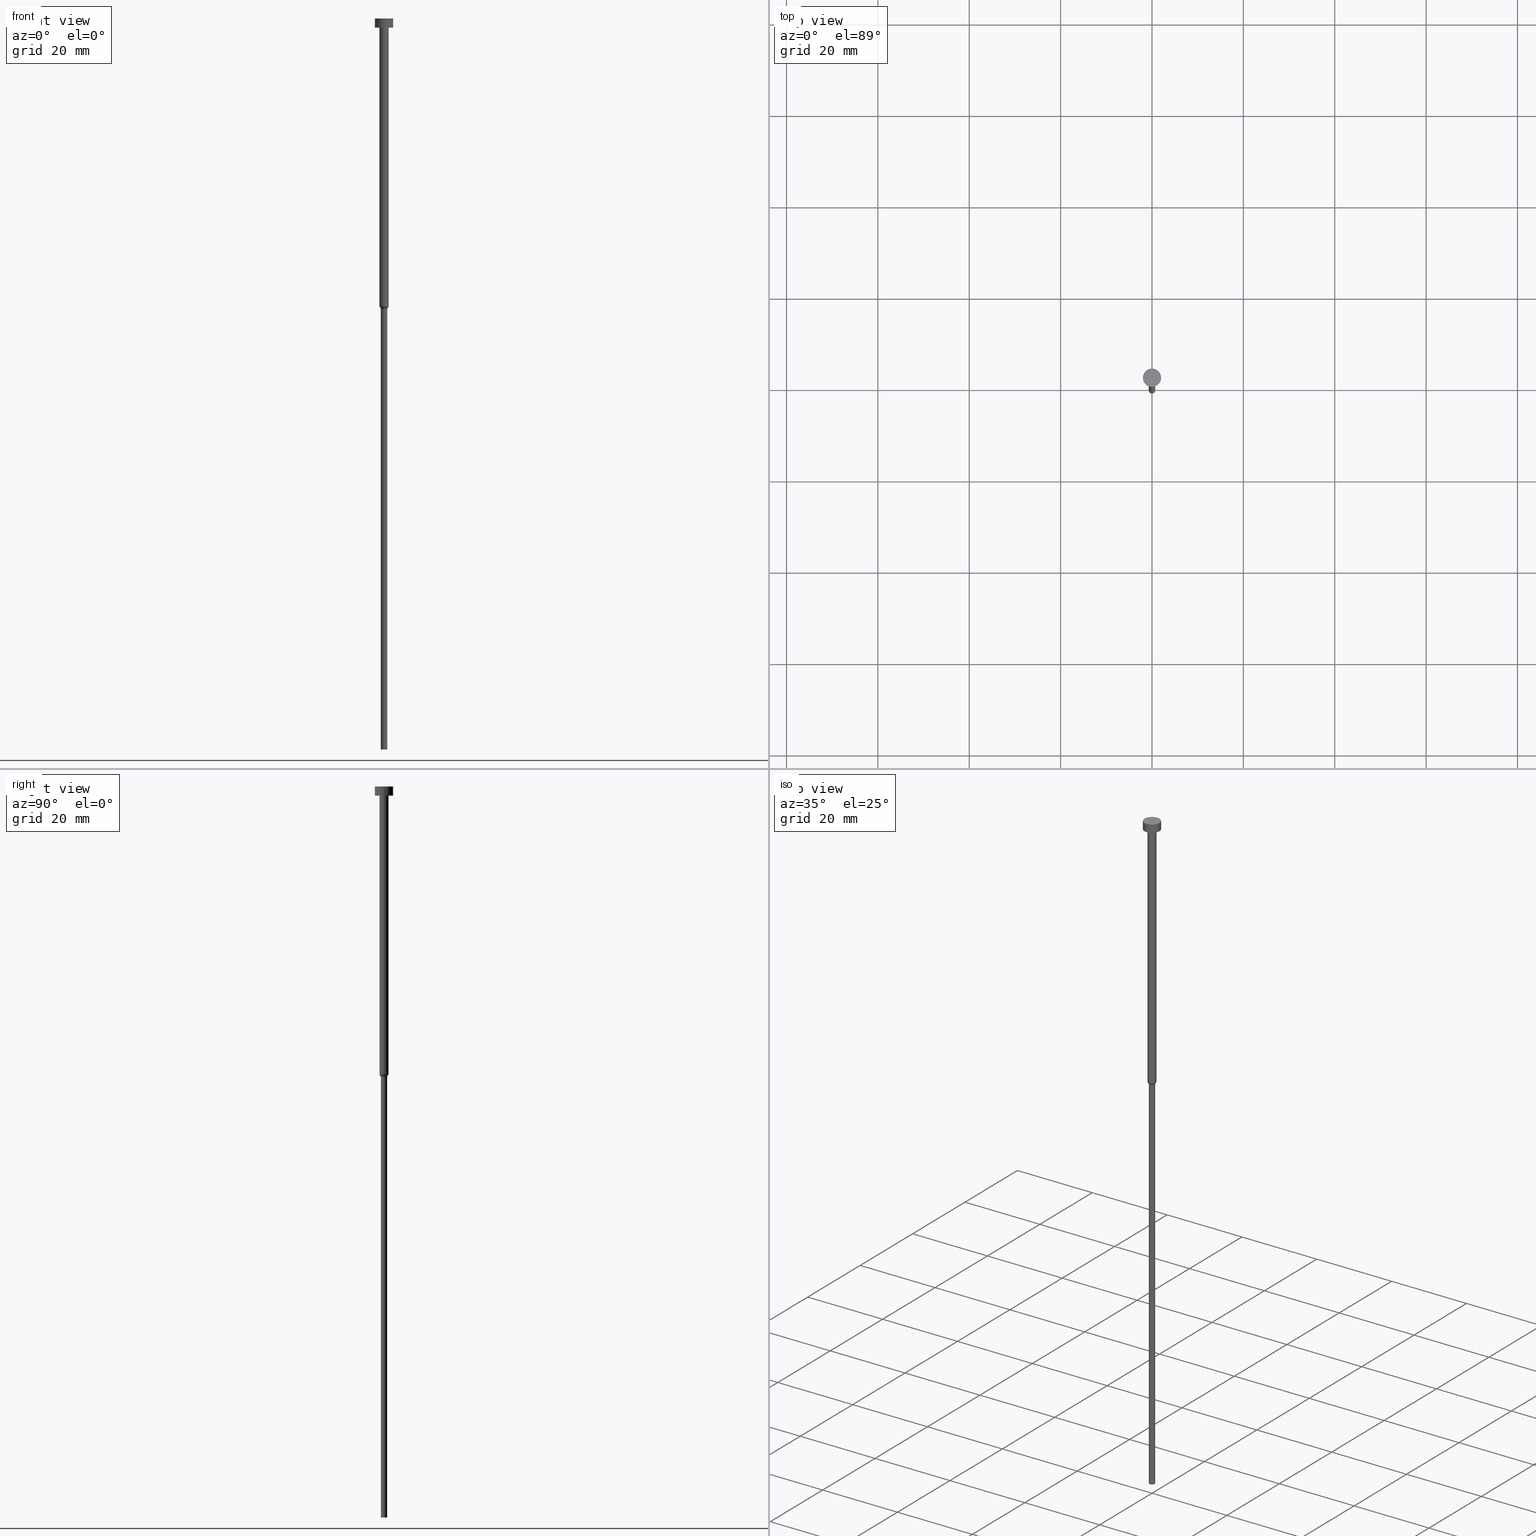
[diagram: canonical four-view strip — front | top / right | iso, engineering-drawing reading convention]
A machine part, canonical four-view strip (front | top / right | iso — engineering-drawing reading convention). The complete STEP part file that produces these views, byte-faithful:
ISO-10303-21;
HEADER;
FILE_DESCRIPTION (( 'STEP AP203' ),
    '1' );
FILE_NAME ('6fc9.STEP',
    '2023-02-13T11:50:39',
    ( '' ),
    ( '' ),
    'SwSTEP 2.0',
    'SolidWorks 2019',
    '' );
FILE_SCHEMA (( 'CONFIG_CONTROL_DESIGN' ));
ENDSEC;

DATA;
#1 = CARTESIAN_POINT ( 'NONE',  ( -2.000000000000000000, 2.449293598294706414E-16, -2.000000000000000444 ) ) ;
#2 = DIRECTION ( 'NONE',  ( 1.000000000000000000, 0.000000000000000000, 0.000000000000000000 ) ) ;
#3 = DIRECTION ( 'NONE',  ( 1.000000000000000000, 0.000000000000000000, 0.000000000000000000 ) ) ;
#4 = APPROVAL ( #76, 'NEUR�EN�' ) ;
#5 = DIRECTION ( 'NONE',  ( 1.000000000000000000, 0.000000000000000000, 0.000000000000000000 ) ) ;
#6 = LOCAL_TIME ( 12, 50, 39.00000000000000000, #292 ) ;
#7 = CARTESIAN_POINT ( 'NONE',  ( 0.000000000000000000, 0.000000000000000000, 0.000000000000000000 ) ) ;
#8 = CYLINDRICAL_SURFACE ( 'NONE', #62, 2.000000000000000000 ) ;
#9 = CARTESIAN_POINT ( 'NONE',  ( 1.000000000000003109, 0.000000000000000000, -63.00000000000000000 ) ) ;
#10 = AXIS2_PLACEMENT_3D ( 'NONE', #274, #50, #167 ) ;
#11 = DIRECTION ( 'NONE',  ( 0.000000000000000000, 0.000000000000000000, 1.000000000000000000 ) ) ;
#12 = CC_DESIGN_PERSON_AND_ORGANIZATION_ASSIGNMENT ( #126, #212, ( #284 ) ) ;
#13 = ORIENTED_EDGE ( 'NONE', *, *, #324, .F. ) ;
#14 = VECTOR ( 'NONE', #342, 1000.000000000000000 ) ;
#15 = PERSON_AND_ORGANIZATION_ROLE ( 'creator' ) ;
#16 = ORIENTED_EDGE ( 'NONE', *, *, #105, .T. ) ;
#17 = EDGE_CURVE ( 'NONE', #242, #177, #351, .T. ) ;
#18 = DATE_AND_TIME ( #236, #171 ) ;
#19 = VERTEX_POINT ( 'NONE', #104 ) ;
#20 = ORIENTED_EDGE ( 'NONE', *, *, #234, .T. ) ;
#21 = ORIENTED_EDGE ( 'NONE', *, *, #38, .T. ) ;
#22 = EDGE_CURVE ( 'NONE', #242, #346, #257, .T. ) ;
#23 = AXIS2_PLACEMENT_3D ( 'NONE', #7, #338, #89 ) ;
#24 = LINE ( 'NONE', #328, #216 ) ;
#25 = CARTESIAN_POINT ( 'NONE',  ( 0.000000000000000000, 0.000000000000000000, -160.0000000000000000 ) ) ;
#26 = FACE_OUTER_BOUND ( 'NONE', #180, .T. ) ;
#27 = VERTEX_POINT ( 'NONE', #208 ) ;
#28 = CIRCLE ( 'NONE', #272, 0.6999999999999998446 ) ;
#29 = ADVANCED_FACE ( 'NONE', ( #69, #290 ), #40, .T. ) ;
#30 = DIRECTION ( 'NONE',  ( 1.000000000000000000, 0.000000000000000000, 0.000000000000000000 ) ) ;
#31 =( LENGTH_UNIT ( ) NAMED_UNIT ( * ) SI_UNIT ( .MILLI., .METRE. ) );
#32 = CC_DESIGN_PERSON_AND_ORGANIZATION_ASSIGNMENT ( #241, #207, ( #238 ) ) ;
#33 = VECTOR ( 'NONE', #61, 1000.000000000000000 ) ;
#34 = CYLINDRICAL_SURFACE ( 'NONE', #51, 1.000000000000003331 ) ;
#35 = CARTESIAN_POINT ( 'NONE',  ( 0.000000000000000000, 0.000000000000000000, -160.0000000000000000 ) ) ;
#36 = AXIS2_PLACEMENT_3D ( 'NONE', #329, #220, #30 ) ;
#37 = APPROVAL_STATUS ( 'not_yet_approved' ) ;
#38 = EDGE_CURVE ( 'NONE', #72, #27, #165, .T. ) ;
#39 = PERSON_AND_ORGANIZATION ( #146, #317 ) ;
#40 = PLANE ( 'NONE',  #269 ) ;
#41 = PERSON_AND_ORGANIZATION_ROLE ( 'design_owner' ) ;
#42 = EDGE_LOOP ( 'NONE', ( #129, #127, #184, #297 ) ) ;
#43 = EDGE_CURVE ( 'NONE', #346, #54, #191, .T. ) ;
#44 = APPROVAL_DATE_TIME ( #350, #123 ) ;
#45 = ORIENTED_EDGE ( 'NONE', *, *, #186, .T. ) ;
#46 = APPROVAL_PERSON_ORGANIZATION ( #94, #123, #318 ) ;
#47 = ORIENTED_EDGE ( 'NONE', *, *, #247, .F. ) ;
#48 = DIRECTION ( 'NONE',  ( -0.000000000000000000, -0.000000000000000000, 1.000000000000000000 ) ) ;
#49 = AXIS2_PLACEMENT_3D ( 'NONE', #187, #330, #108 ) ;
#50 = DIRECTION ( 'NONE',  ( -0.000000000000000000, -0.000000000000000000, 1.000000000000000000 ) ) ;
#51 = AXIS2_PLACEMENT_3D ( 'NONE', #314, #64, #91 ) ;
#52 = DIRECTION ( 'NONE',  ( 1.000000000000000000, 0.000000000000000000, 0.000000000000000000 ) ) ;
#53 = DIRECTION ( 'NONE',  ( 0.000000000000000000, -0.000000000000000000, 1.000000000000000000 ) ) ;
#54 = VERTEX_POINT ( 'NONE', #248 ) ;
#55 = DIRECTION ( 'NONE',  ( -0.000000000000000000, -0.000000000000000000, 1.000000000000000000 ) ) ;
#56 = APPROVAL_PERSON_ORGANIZATION ( #102, #65, #68 ) ;
#57 = DIRECTION ( 'NONE',  ( -1.000000000000000000, 0.000000000000000000, -0.000000000000000000 ) ) ;
#58 = DIRECTION ( 'NONE',  ( -0.000000000000000000, -0.000000000000000000, 1.000000000000000000 ) ) ;
#59 = PRODUCT_RELATED_PRODUCT_CATEGORY ( 'detail', '', ( #106 ) ) ;
#60 = CIRCLE ( 'NONE', #231, 2.000000000000000000 ) ;
#61 = DIRECTION ( 'NONE',  ( -0.000000000000000000, -0.000000000000000000, 1.000000000000000000 ) ) ;
#62 = AXIS2_PLACEMENT_3D ( 'NONE', #229, #340, #308 ) ;
#63 = CARTESIAN_POINT ( 'NONE',  ( -0.6999999999999998446, 8.572527594031470725E-17, -160.0000000000000000 ) ) ;
#64 = DIRECTION ( 'NONE',  ( -0.000000000000000000, -0.000000000000000000, 1.000000000000000000 ) ) ;
#65 = APPROVAL ( #176, 'NEUR�EN�' ) ;
#66 = LINE ( 'NONE', #258, #142 ) ;
#67 = CIRCLE ( 'NONE', #49, 2.000000000000000000 ) ;
#68 = APPROVAL_ROLE ( '' ) ;
#69 = FACE_BOUND ( 'NONE', #267, .T. ) ;
#70 = AXIS2_PLACEMENT_3D ( 'NONE', #347, #11, #151 ) ;
#71 = CALENDAR_DATE ( 2023, 13, 2 ) ;
#72 = VERTEX_POINT ( 'NONE', #223 ) ;
#73 = ORIENTED_EDGE ( 'NONE', *, *, #200, .F. ) ;
#74 = APPROVAL_DATE_TIME ( #18, #4 ) ;
#75 = ORIENTED_EDGE ( 'NONE', *, *, #279, .T. ) ;
#76 = APPROVAL_STATUS ( 'not_yet_approved' ) ;
#77 = ORIENTED_EDGE ( 'NONE', *, *, #271, .F. ) ;
#78 = EDGE_CURVE ( 'NONE', #268, #100, #60, .T. ) ;
#79 = DIRECTION ( 'NONE',  ( -0.000000000000000000, -0.000000000000000000, 1.000000000000000000 ) ) ;
#80 = PLANE ( 'NONE',  #305 ) ;
#81 = AXIS2_PLACEMENT_3D ( 'NONE', #160, #107, #221 ) ;
#82 = DIRECTION ( 'NONE',  ( -0.000000000000000000, -0.000000000000000000, 1.000000000000000000 ) ) ;
#83 = EDGE_CURVE ( 'NONE', #54, #177, #101, .T. ) ;
#84 = DIRECTION ( 'NONE',  ( -1.000000000000000000, 0.000000000000000000, -0.000000000000000000 ) ) ;
#85 = CARTESIAN_POINT ( 'NONE',  ( -1.000000000000003331, 1.224646799147357151E-16, 0.000000000000000000 ) ) ;
#86 = DIRECTION ( 'NONE',  ( -0.000000000000000000, -0.000000000000000000, 1.000000000000000000 ) ) ;
#87 = CARTESIAN_POINT ( 'NONE',  ( 0.000000000000000000, 0.000000000000000000, -2.000000000000000444 ) ) ;
#88 = CARTESIAN_POINT ( 'NONE',  ( -0.6999999999999998446, 8.572527594031470725E-17, 0.000000000000000000 ) ) ;
#89 = DIRECTION ( 'NONE',  ( 1.000000000000000000, 0.000000000000000000, 0.000000000000000000 ) ) ;
#90 = ADVANCED_FACE ( 'NONE', ( #306 ), #80, .T. ) ;
#91 = DIRECTION ( 'NONE',  ( 1.000000000000000000, 0.000000000000000000, 0.000000000000000000 ) ) ;
#92 = EDGE_LOOP ( 'NONE', ( #270, #77 ) ) ;
#93 = ADVANCED_FACE ( 'NONE', ( #331 ), #302, .T. ) ;
#94 = PERSON_AND_ORGANIZATION ( #146, #317 ) ;
#95 = EDGE_LOOP ( 'NONE', ( #13, #158 ) ) ;
#96 = CONICAL_SURFACE ( 'NONE', #300, 1.000000000000003109, 0.5235987755983037006 ) ;
#97 = COORDINATED_UNIVERSAL_TIME_OFFSET ( 1, 0, .AHEAD. ) ;
#98 = VERTEX_POINT ( 'NONE', #304 ) ;
#99 = CALENDAR_DATE ( 2023, 13, 2 ) ;
#100 = VERTEX_POINT ( 'NONE', #1 ) ;
#101 = CIRCLE ( 'NONE', #263, 1.000000000000003553 ) ;
#102 = PERSON_AND_ORGANIZATION ( #146, #317 ) ;
#103 = APPLICATION_CONTEXT ( 'configuration controlled 3d designs of mechanical parts and assemblies' ) ;
#104 = CARTESIAN_POINT ( 'NONE',  ( 0.6999999999999998446, 0.000000000000000000, -160.0000000000000000 ) ) ;
#105 = EDGE_CURVE ( 'NONE', #125, #98, #288, .T. ) ;
#106 = PRODUCT ( '6fc9', '6fc9', '', ( #264 ) ) ;
#107 = DIRECTION ( 'NONE',  ( -0.000000000000000000, -0.000000000000000000, 1.000000000000000000 ) ) ;
#108 = DIRECTION ( 'NONE',  ( 1.000000000000000000, 0.000000000000000000, 0.000000000000000000 ) ) ;
#109 = DIRECTION ( 'NONE',  ( -0.000000000000000000, -0.000000000000000000, 1.000000000000000000 ) ) ;
#110 = CARTESIAN_POINT ( 'NONE',  ( 0.6999999999999998446, 0.000000000000000000, 0.000000000000000000 ) ) ;
#111 = CARTESIAN_POINT ( 'NONE',  ( 1.000000000000003553, 0.000000000000000000, -2.000000000000000444 ) ) ;
#112 = CLOSED_SHELL ( 'NONE', ( #286, #291, #206, #131, #90, #349, #162, #341, #29, #334, #93 ) ) ;
#113 = AXIS2_PLACEMENT_3D ( 'NONE', #353, #109, #3 ) ;
#114 = CARTESIAN_POINT ( 'NONE',  ( 2.000000000000000000, 0.000000000000000000, -2.000000000000000444 ) ) ;
#115 = CIRCLE ( 'NONE', #197, 2.000000000000000000 ) ;
#116 = DIRECTION ( 'NONE',  ( -0.000000000000000000, -0.000000000000000000, 1.000000000000000000 ) ) ;
#117 = ORIENTED_EDGE ( 'NONE', *, *, #140, .F. ) ;
#118 = DIRECTION ( 'NONE',  ( -0.000000000000000000, -0.000000000000000000, 1.000000000000000000 ) ) ;
#119 = CC_DESIGN_PERSON_AND_ORGANIZATION_ASSIGNMENT ( #261, #15, ( #238 ) ) ;
#120 = DIRECTION ( 'NONE',  ( -0.000000000000000000, -0.000000000000000000, 1.000000000000000000 ) ) ;
#121 = ORIENTED_EDGE ( 'NONE', *, *, #157, .T. ) ;
#122 = PERSON_AND_ORGANIZATION_ROLE ( 'creator' ) ;
#123 = APPROVAL ( #37, 'NEUR�EN�' ) ;
#124 = CALENDAR_DATE ( 2023, 13, 2 ) ;
#125 = VERTEX_POINT ( 'NONE', #273 ) ;
#126 = PERSON_AND_ORGANIZATION ( #146, #317 ) ;
#127 = ORIENTED_EDGE ( 'NONE', *, *, #247, .T. ) ;
#128 = APPLICATION_PROTOCOL_DEFINITION ( 'international standard', 'config_control_design', 1994, #103 ) ;
#129 = ORIENTED_EDGE ( 'NONE', *, *, #43, .F. ) ;
#130 = ORIENTED_EDGE ( 'NONE', *, *, #78, .T. ) ;
#131 = ADVANCED_FACE ( 'NONE', ( #246 ), #164, .T. ) ;
#132 = DIRECTION ( 'NONE',  ( -0.000000000000000000, -0.000000000000000000, 1.000000000000000000 ) ) ;
#133 =( GEOMETRIC_REPRESENTATION_CONTEXT ( 3 ) GLOBAL_UNCERTAINTY_ASSIGNED_CONTEXT ( ( #134 ) ) GLOBAL_UNIT_ASSIGNED_CONTEXT ( ( #31, #335, #198 ) ) REPRESENTATION_CONTEXT ( 'NONE', 'WORKASPACE' ) );
#134 = UNCERTAINTY_MEASURE_WITH_UNIT (LENGTH_MEASURE( 1.000000000000000082E-05 ), #31, 'distance_accuracy_value', 'NONE');
#135 = DIRECTION ( 'NONE',  ( 1.000000000000000000, 0.000000000000000000, 0.000000000000000000 ) ) ;
#136 = CC_DESIGN_PERSON_AND_ORGANIZATION_ASSIGNMENT ( #345, #41, ( #106 ) ) ;
#137 = DIRECTION ( 'NONE',  ( -0.000000000000000000, -0.000000000000000000, 1.000000000000000000 ) ) ;
#138 = DIRECTION ( 'NONE',  ( 0.5000000000000041078, 0.000000000000000000, 0.8660254037844362651 ) ) ;
#139 = DIRECTION ( 'NONE',  ( 0.000000000000000000, 0.000000000000000000, -1.000000000000000000 ) ) ;
#140 = EDGE_CURVE ( 'NONE', #27, #72, #67, .T. ) ;
#141 = CARTESIAN_POINT ( 'NONE',  ( 0.000000000000000000, 0.000000000000000000, -63.00000000000000000 ) ) ;
#142 = VECTOR ( 'NONE', #201, 1000.000000000000000 ) ;
#143 = DIRECTION ( 'NONE',  ( -0.5000000000000041078, 6.123233995736817805E-17, 0.8660254037844362651 ) ) ;
#144 = DIRECTION ( 'NONE',  ( 1.000000000000000000, 0.000000000000000000, 0.000000000000000000 ) ) ;
#145 = APPLICATION_CONTEXT ( 'configuration controlled 3d designs of mechanical parts and assemblies' ) ;
#146 = PERSON ( 'NEUR�EN�', 'NEUR�EN�', 'NEUR�EN�', ('NEUR�EN�'), ('NEUR�EN�'), ('NEUR�EN�') ) ;
#147 = CARTESIAN_POINT ( 'NONE',  ( 0.000000000000000000, 0.000000000000000000, 0.000000000000000000 ) ) ;
#148 = SECURITY_CLASSIFICATION_LEVEL ( 'unclassified' ) ;
#149 = CC_DESIGN_DATE_AND_TIME_ASSIGNMENT ( #178, #326, ( #284 ) ) ;
#150 = ORIENTED_EDGE ( 'NONE', *, *, #259, .T. ) ;
#151 = DIRECTION ( 'NONE',  ( 1.000000000000000000, 0.000000000000000000, 0.000000000000000000 ) ) ;
#152 = ORIENTED_EDGE ( 'NONE', *, *, #234, .F. ) ;
#153 = DESIGN_CONTEXT ( 'detailed design', #145, 'design' ) ;
#154 = DATE_AND_TIME ( #71, #6 ) ;
#155 = LOCAL_TIME ( 12, 50, 39.00000000000000000, #239 ) ;
#156 = EDGE_LOOP ( 'NONE', ( #21, #344 ) ) ;
#157 = EDGE_CURVE ( 'NONE', #268, #72, #219, .T. ) ;
#158 = ORIENTED_EDGE ( 'NONE', *, *, #168, .F. ) ;
#159 = ORIENTED_EDGE ( 'NONE', *, *, #168, .T. ) ;
#160 = CARTESIAN_POINT ( 'NONE',  ( 0.000000000000000000, 0.000000000000000000, -2.000000000000000444 ) ) ;
#161 = CC_DESIGN_APPROVAL ( #123, ( #218 ) ) ;
#162 = ADVANCED_FACE ( 'NONE', ( #26 ), #222, .T. ) ;
#163 = CARTESIAN_POINT ( 'NONE',  ( 2.000000000000000000, 0.000000000000000000, 0.000000000000000000 ) ) ;
#164 = CYLINDRICAL_SURFACE ( 'NONE', #113, 0.6999999999999998446 ) ;
#165 = CIRCLE ( 'NONE', #36, 2.000000000000000000 ) ;
#166 = EDGE_LOOP ( 'NONE', ( #240, #159, #211, #73 ) ) ;
#167 = DIRECTION ( 'NONE',  ( 1.000000000000000000, 0.000000000000000000, 0.000000000000000000 ) ) ;
#168 = EDGE_CURVE ( 'NONE', #230, #19, #260, .T. ) ;
#169 = DIRECTION ( 'NONE',  ( 0.000000000000000000, 0.000000000000000000, -1.000000000000000000 ) ) ;
#170 = CARTESIAN_POINT ( 'NONE',  ( -1.000000000000003109, 1.224646799147356905E-16, -63.00000000000000000 ) ) ;
#171 = LOCAL_TIME ( 12, 50, 39.00000000000000000, #266 ) ;
#172 = CARTESIAN_POINT ( 'NONE',  ( 0.000000000000000000, 0.000000000000000000, -63.00000000000000000 ) ) ;
#173 = FACE_OUTER_BOUND ( 'NONE', #166, .T. ) ;
#174 = CIRCLE ( 'NONE', #227, 0.6999999999999998446 ) ;
#175 = ORIENTED_EDGE ( 'NONE', *, *, #83, .T. ) ;
#176 = APPROVAL_STATUS ( 'not_yet_approved' ) ;
#177 = VERTEX_POINT ( 'NONE', #111 ) ;
#178 = DATE_AND_TIME ( #320, #155 ) ;
#179 = AXIS2_PLACEMENT_3D ( 'NONE', #298, #48, #316 ) ;
#180 = EDGE_LOOP ( 'NONE', ( #282, #217, #45, #47 ) ) ;
#181 = EDGE_CURVE ( 'NONE', #177, #54, #307, .T. ) ;
#182 = SHAPE_DEFINITION_REPRESENTATION ( #190, #196 ) ;
#183 = AXIS2_PLACEMENT_3D ( 'NONE', #25, #137, #2 ) ;
#184 = ORIENTED_EDGE ( 'NONE', *, *, #17, .T. ) ;
#185 = ORIENTED_EDGE ( 'NONE', *, *, #22, .F. ) ;
#186 = EDGE_CURVE ( 'NONE', #125, #242, #24, .T. ) ;
#187 = CARTESIAN_POINT ( 'NONE',  ( 0.000000000000000000, 0.000000000000000000, -2.449293598294705921E-16 ) ) ;
#188 = CARTESIAN_POINT ( 'NONE',  ( 0.000000000000000000, 0.000000000000000000, -160.0000000000000000 ) ) ;
#189 = AXIS2_PLACEMENT_3D ( 'NONE', #147, #120, #337 ) ;
#190 = PRODUCT_DEFINITION_SHAPE ( 'NONE', 'NONE',  #218 ) ;
#191 = LINE ( 'NONE', #85, #310 ) ;
#192 = ORIENTED_EDGE ( 'NONE', *, *, #17, .F. ) ;
#193 = DIRECTION ( 'NONE',  ( 1.000000000000000000, 0.000000000000000000, 0.000000000000000000 ) ) ;
#194 = EDGE_CURVE ( 'NONE', #19, #125, #250, .T. ) ;
#195 = DIRECTION ( 'NONE',  ( 1.000000000000000000, 0.000000000000000000, 0.000000000000000000 ) ) ;
#196 = ADVANCED_BREP_SHAPE_REPRESENTATION ( '6fc9', ( #343, #70 ), #133 ) ;
#197 = AXIS2_PLACEMENT_3D ( 'NONE', #87, #86, #199 ) ;
#198 =( NAMED_UNIT ( * ) SI_UNIT ( $, .STERADIAN. ) SOLID_ANGLE_UNIT ( ) );
#199 = DIRECTION ( 'NONE',  ( 1.000000000000000000, 0.000000000000000000, 0.000000000000000000 ) ) ;
#200 = EDGE_CURVE ( 'NONE', #98, #125, #28, .T. ) ;
#201 = DIRECTION ( 'NONE',  ( -0.000000000000000000, -0.000000000000000000, 1.000000000000000000 ) ) ;
#202 = ORIENTED_EDGE ( 'NONE', *, *, #181, .F. ) ;
#203 = CC_DESIGN_APPROVAL ( #4, ( #284 ) ) ;
#204 = FACE_OUTER_BOUND ( 'NONE', #42, .T. ) ;
#205 = LINE ( 'NONE', #309, #313 ) ;
#206 = ADVANCED_FACE ( 'NONE', ( #332 ), #96, .T. ) ;
#207 = PERSON_AND_ORGANIZATION_ROLE ( 'design_supplier' ) ;
#208 = CARTESIAN_POINT ( 'NONE',  ( -2.000000000000000000, 2.449293598294706414E-16, -2.449293598294705921E-16 ) ) ;
#209 = CC_DESIGN_APPROVAL ( #65, ( #238 ) ) ;
#210 = PERSON_AND_ORGANIZATION ( #146, #317 ) ;
#211 = ORIENTED_EDGE ( 'NONE', *, *, #194, .T. ) ;
#212 = PERSON_AND_ORGANIZATION_ROLE ( 'classification_officer' ) ;
#213 = ORIENTED_EDGE ( 'NONE', *, *, #157, .F. ) ;
#214 = COORDINATED_UNIVERSAL_TIME_OFFSET ( 1, 0, .AHEAD. ) ;
#215 = ORIENTED_EDGE ( 'NONE', *, *, #181, .T. ) ;
#216 = VECTOR ( 'NONE', #138, 1000.000000000000114 ) ;
#217 = ORIENTED_EDGE ( 'NONE', *, *, #200, .T. ) ;
#218 = PRODUCT_DEFINITION ( 'NEZN�M�', '', #238, #153 ) ;
#219 = LINE ( 'NONE', #163, #352 ) ;
#220 = DIRECTION ( 'NONE',  ( -0.000000000000000000, -0.000000000000000000, 1.000000000000000000 ) ) ;
#221 = DIRECTION ( 'NONE',  ( 1.000000000000000000, 0.000000000000000000, 0.000000000000000000 ) ) ;
#222 = CONICAL_SURFACE ( 'NONE', #10, 1.000000000000003109, 0.5235987755983037006 ) ;
#223 = CARTESIAN_POINT ( 'NONE',  ( 2.000000000000000000, 0.000000000000000000, -2.449293598294705921E-16 ) ) ;
#224 = CC_DESIGN_PERSON_AND_ORGANIZATION_ASSIGNMENT ( #210, #122, ( #218 ) ) ;
#225 = DIRECTION ( 'NONE',  ( 1.000000000000000000, 0.000000000000000000, 0.000000000000000000 ) ) ;
#226 = AXIS2_PLACEMENT_3D ( 'NONE', #278, #53, #193 ) ;
#227 = AXIS2_PLACEMENT_3D ( 'NONE', #35, #116, #280 ) ;
#228 = FACE_OUTER_BOUND ( 'NONE', #293, .T. ) ;
#229 = CARTESIAN_POINT ( 'NONE',  ( 0.000000000000000000, 0.000000000000000000, 0.000000000000000000 ) ) ;
#230 = VERTEX_POINT ( 'NONE', #63 ) ;
#231 = AXIS2_PLACEMENT_3D ( 'NONE', #355, #252, #195 ) ;
#232 = DIRECTION ( 'NONE',  ( -0.000000000000000000, -0.000000000000000000, 1.000000000000000000 ) ) ;
#233 = AXIS2_PLACEMENT_3D ( 'NONE', #172, #118, #287 ) ;
#234 = EDGE_CURVE ( 'NONE', #100, #27, #66, .T. ) ;
#235 = ORIENTED_EDGE ( 'NONE', *, *, #105, .F. ) ;
#236 = CALENDAR_DATE ( 2023, 13, 2 ) ;
#237 = ORIENTED_EDGE ( 'NONE', *, *, #186, .F. ) ;
#238 = PRODUCT_DEFINITION_FORMATION_WITH_SPECIFIED_SOURCE ( 'LIBOVOLN�', '', #106, .NOT_KNOWN. ) ;
#239 = COORDINATED_UNIVERSAL_TIME_OFFSET ( 1, 0, .AHEAD. ) ;
#240 = ORIENTED_EDGE ( 'NONE', *, *, #259, .F. ) ;
#241 = PERSON_AND_ORGANIZATION ( #146, #317 ) ;
#242 = VERTEX_POINT ( 'NONE', #9 ) ;
#243 = DATE_TIME_ROLE ( 'creation_date' ) ;
#244 = ORIENTED_EDGE ( 'NONE', *, *, #43, .T. ) ;
#245 = AXIS2_PLACEMENT_3D ( 'NONE', #311, #58, #5 ) ;
#246 = FACE_OUTER_BOUND ( 'NONE', #327, .T. ) ;
#247 = EDGE_CURVE ( 'NONE', #346, #242, #339, .T. ) ;
#248 = CARTESIAN_POINT ( 'NONE',  ( -1.000000000000003553, 1.224646799147357398E-16, -2.000000000000000444 ) ) ;
#249 = CARTESIAN_POINT ( 'NONE',  ( 0.000000000000000000, 0.000000000000000000, -63.51961524227066036 ) ) ;
#250 = LINE ( 'NONE', #110, #325 ) ;
#251 = CC_DESIGN_SECURITY_CLASSIFICATION ( #284, ( #238 ) ) ;
#252 = DIRECTION ( 'NONE',  ( -0.000000000000000000, -0.000000000000000000, 1.000000000000000000 ) ) ;
#253 = FACE_OUTER_BOUND ( 'NONE', #295, .T. ) ;
#254 = LOCAL_TIME ( 12, 50, 39.00000000000000000, #97 ) ;
#255 = LINE ( 'NONE', #88, #33 ) ;
#256 = FACE_OUTER_BOUND ( 'NONE', #312, .T. ) ;
#257 = CIRCLE ( 'NONE', #179, 1.000000000000003109 ) ;
#258 = CARTESIAN_POINT ( 'NONE',  ( -2.000000000000000000, 2.449293598294706414E-16, 0.000000000000000000 ) ) ;
#259 = EDGE_CURVE ( 'NONE', #230, #98, #255, .T. ) ;
#260 = CIRCLE ( 'NONE', #183, 0.6999999999999998446 ) ;
#261 = PERSON_AND_ORGANIZATION ( #146, #317 ) ;
#262 = CARTESIAN_POINT ( 'NONE',  ( 0.000000000000000000, -2.000000000000000000, -2.000000000000000444 ) ) ;
#263 = AXIS2_PLACEMENT_3D ( 'NONE', #301, #79, #135 ) ;
#264 = MECHANICAL_CONTEXT ( 'NONE', #103, 'mechanical' ) ;
#265 = ORIENTED_EDGE ( 'NONE', *, *, #22, .T. ) ;
#266 = COORDINATED_UNIVERSAL_TIME_OFFSET ( 1, 0, .AHEAD. ) ;
#267 = EDGE_LOOP ( 'NONE', ( #215, #175 ) ) ;
#268 = VERTEX_POINT ( 'NONE', #114 ) ;
#269 = AXIS2_PLACEMENT_3D ( 'NONE', #262, #169, #57 ) ;
#270 = ORIENTED_EDGE ( 'NONE', *, *, #78, .F. ) ;
#271 = EDGE_CURVE ( 'NONE', #100, #268, #115, .T. ) ;
#272 = AXIS2_PLACEMENT_3D ( 'NONE', #277, #299, #225 ) ;
#273 = CARTESIAN_POINT ( 'NONE',  ( 0.6999999999999998446, 0.000000000000000000, -63.51961524227066036 ) ) ;
#274 = CARTESIAN_POINT ( 'NONE',  ( 0.000000000000000000, 0.000000000000000000, -63.00000000000000000 ) ) ;
#275 = DIRECTION ( 'NONE',  ( -0.000000000000000000, -0.000000000000000000, 1.000000000000000000 ) ) ;
#276 = ORIENTED_EDGE ( 'NONE', *, *, #324, .T. ) ;
#277 = CARTESIAN_POINT ( 'NONE',  ( 0.000000000000000000, 0.000000000000000000, -63.51961524227066036 ) ) ;
#278 = CARTESIAN_POINT ( 'NONE',  ( 0.000000000000000000, 0.000000000000000000, -1.224646799147352961E-16 ) ) ;
#279 = EDGE_CURVE ( 'NONE', #98, #346, #205, .T. ) ;
#280 = DIRECTION ( 'NONE',  ( 1.000000000000000000, 0.000000000000000000, 0.000000000000000000 ) ) ;
#281 = CYLINDRICAL_SURFACE ( 'NONE', #189, 0.6999999999999998446 ) ;
#282 = ORIENTED_EDGE ( 'NONE', *, *, #279, .F. ) ;
#283 = APPROVAL_PERSON_ORGANIZATION ( #39, #4, #322 ) ;
#284 = SECURITY_CLASSIFICATION ( '', '', #148 ) ;
#285 = CYLINDRICAL_SURFACE ( 'NONE', #23, 2.000000000000000000 ) ;
#286 = ADVANCED_FACE ( 'NONE', ( #256 ), #8, .T. ) ;
#287 = DIRECTION ( 'NONE',  ( 1.000000000000000000, 0.000000000000000000, 0.000000000000000000 ) ) ;
#288 = CIRCLE ( 'NONE', #333, 0.6999999999999998446 ) ;
#289 = APPLICATION_PROTOCOL_DEFINITION ( 'international standard', 'config_control_design', 1994, #145 ) ;
#290 = FACE_OUTER_BOUND ( 'NONE', #92, .T. ) ;
#291 = ADVANCED_FACE ( 'NONE', ( #253 ), #315, .T. ) ;
#292 = COORDINATED_UNIVERSAL_TIME_OFFSET ( 1, 0, .AHEAD. ) ;
#293 = EDGE_LOOP ( 'NONE', ( #152, #321, #121, #117 ) ) ;
#294 = DATE_AND_TIME ( #124, #336 ) ;
#295 = EDGE_LOOP ( 'NONE', ( #265, #244, #202, #192 ) ) ;
#296 = APPROVAL_DATE_TIME ( #294, #65 ) ;
#297 = ORIENTED_EDGE ( 'NONE', *, *, #83, .F. ) ;
#298 = CARTESIAN_POINT ( 'NONE',  ( 0.000000000000000000, 0.000000000000000000, -63.00000000000000000 ) ) ;
#299 = DIRECTION ( 'NONE',  ( -0.000000000000000000, -0.000000000000000000, 1.000000000000000000 ) ) ;
#300 = AXIS2_PLACEMENT_3D ( 'NONE', #141, #232, #144 ) ;
#301 = CARTESIAN_POINT ( 'NONE',  ( 0.000000000000000000, 0.000000000000000000, -2.000000000000000444 ) ) ;
#302 = PLANE ( 'NONE',  #226 ) ;
#303 = EDGE_LOOP ( 'NONE', ( #16, #75, #185, #237 ) ) ;
#304 = CARTESIAN_POINT ( 'NONE',  ( -0.6999999999999998446, 8.572527594031470725E-17, -63.51961524227066036 ) ) ;
#305 = AXIS2_PLACEMENT_3D ( 'NONE', #188, #139, #84 ) ;
#306 = FACE_OUTER_BOUND ( 'NONE', #95, .T. ) ;
#307 = CIRCLE ( 'NONE', #81, 1.000000000000003553 ) ;
#308 = DIRECTION ( 'NONE',  ( 1.000000000000000000, 0.000000000000000000, 0.000000000000000000 ) ) ;
#309 = CARTESIAN_POINT ( 'NONE',  ( -1.000000000000003109, 1.224646799147356905E-16, -63.00000000000000000 ) ) ;
#310 = VECTOR ( 'NONE', #82, 1000.000000000000000 ) ;
#311 = CARTESIAN_POINT ( 'NONE',  ( 0.000000000000000000, 0.000000000000000000, 0.000000000000000000 ) ) ;
#312 = EDGE_LOOP ( 'NONE', ( #130, #20, #323, #213 ) ) ;
#313 = VECTOR ( 'NONE', #143, 1000.000000000000114 ) ;
#314 = CARTESIAN_POINT ( 'NONE',  ( 0.000000000000000000, 0.000000000000000000, 0.000000000000000000 ) ) ;
#315 = CYLINDRICAL_SURFACE ( 'NONE', #245, 1.000000000000003331 ) ;
#316 = DIRECTION ( 'NONE',  ( 1.000000000000000000, 0.000000000000000000, 0.000000000000000000 ) ) ;
#317 = ORGANIZATION ( 'NEUR�EN�', 'NEUR�EN�', '' ) ;
#318 = APPROVAL_ROLE ( '' ) ;
#319 = CARTESIAN_POINT ( 'NONE',  ( 1.000000000000003331, 0.000000000000000000, 0.000000000000000000 ) ) ;
#320 = CALENDAR_DATE ( 2023, 13, 2 ) ;
#321 = ORIENTED_EDGE ( 'NONE', *, *, #271, .T. ) ;
#322 = APPROVAL_ROLE ( '' ) ;
#323 = ORIENTED_EDGE ( 'NONE', *, *, #38, .F. ) ;
#324 = EDGE_CURVE ( 'NONE', #19, #230, #174, .T. ) ;
#325 = VECTOR ( 'NONE', #55, 1000.000000000000000 ) ;
#326 = DATE_TIME_ROLE ( 'classification_date' ) ;
#327 = EDGE_LOOP ( 'NONE', ( #276, #150, #235, #348 ) ) ;
#328 = CARTESIAN_POINT ( 'NONE',  ( 1.000000000000003109, 0.000000000000000000, -63.00000000000000000 ) ) ;
#329 = CARTESIAN_POINT ( 'NONE',  ( 0.000000000000000000, 0.000000000000000000, -2.449293598294705921E-16 ) ) ;
#330 = DIRECTION ( 'NONE',  ( -0.000000000000000000, -0.000000000000000000, 1.000000000000000000 ) ) ;
#331 = FACE_OUTER_BOUND ( 'NONE', #156, .T. ) ;
#332 = FACE_OUTER_BOUND ( 'NONE', #303, .T. ) ;
#333 = AXIS2_PLACEMENT_3D ( 'NONE', #249, #132, #52 ) ;
#334 = ADVANCED_FACE ( 'NONE', ( #228 ), #285, .T. ) ;
#335 =( NAMED_UNIT ( * ) PLANE_ANGLE_UNIT ( ) SI_UNIT ( $, .RADIAN. ) );
#336 = LOCAL_TIME ( 12, 50, 39.00000000000000000, #214 ) ;
#337 = DIRECTION ( 'NONE',  ( 1.000000000000000000, 0.000000000000000000, 0.000000000000000000 ) ) ;
#338 = DIRECTION ( 'NONE',  ( -0.000000000000000000, -0.000000000000000000, 1.000000000000000000 ) ) ;
#339 = CIRCLE ( 'NONE', #233, 1.000000000000003109 ) ;
#340 = DIRECTION ( 'NONE',  ( -0.000000000000000000, -0.000000000000000000, 1.000000000000000000 ) ) ;
#341 = ADVANCED_FACE ( 'NONE', ( #204 ), #34, .T. ) ;
#342 = DIRECTION ( 'NONE',  ( -0.000000000000000000, -0.000000000000000000, 1.000000000000000000 ) ) ;
#343 = MANIFOLD_SOLID_BREP ( 'Rotovat1', #112 ) ;
#344 = ORIENTED_EDGE ( 'NONE', *, *, #140, .T. ) ;
#345 = PERSON_AND_ORGANIZATION ( #146, #317 ) ;
#346 = VERTEX_POINT ( 'NONE', #170 ) ;
#347 = CARTESIAN_POINT ( 'NONE',  ( 0.000000000000000000, 0.000000000000000000, 0.000000000000000000 ) ) ;
#348 = ORIENTED_EDGE ( 'NONE', *, *, #194, .F. ) ;
#349 = ADVANCED_FACE ( 'NONE', ( #173 ), #281, .T. ) ;
#350 = DATE_AND_TIME ( #99, #254 ) ;
#351 = LINE ( 'NONE', #319, #14 ) ;
#352 = VECTOR ( 'NONE', #275, 1000.000000000000000 ) ;
#353 = CARTESIAN_POINT ( 'NONE',  ( 0.000000000000000000, 0.000000000000000000, 0.000000000000000000 ) ) ;
#354 = CC_DESIGN_DATE_AND_TIME_ASSIGNMENT ( #154, #243, ( #218 ) ) ;
#355 = CARTESIAN_POINT ( 'NONE',  ( 0.000000000000000000, 0.000000000000000000, -2.000000000000000444 ) ) ;
ENDSEC;
END-ISO-10303-21;
